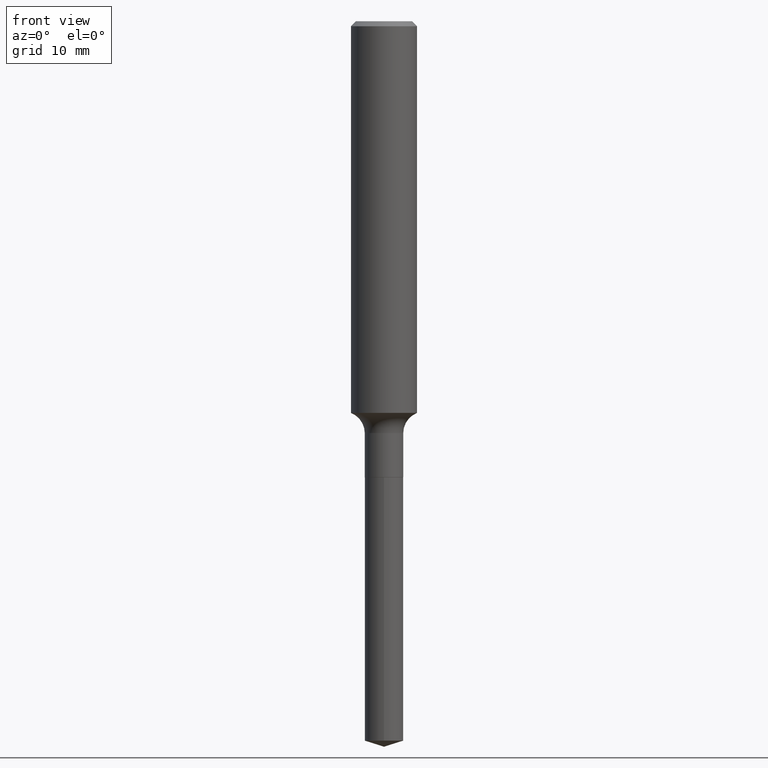
[diagram: clean part render]
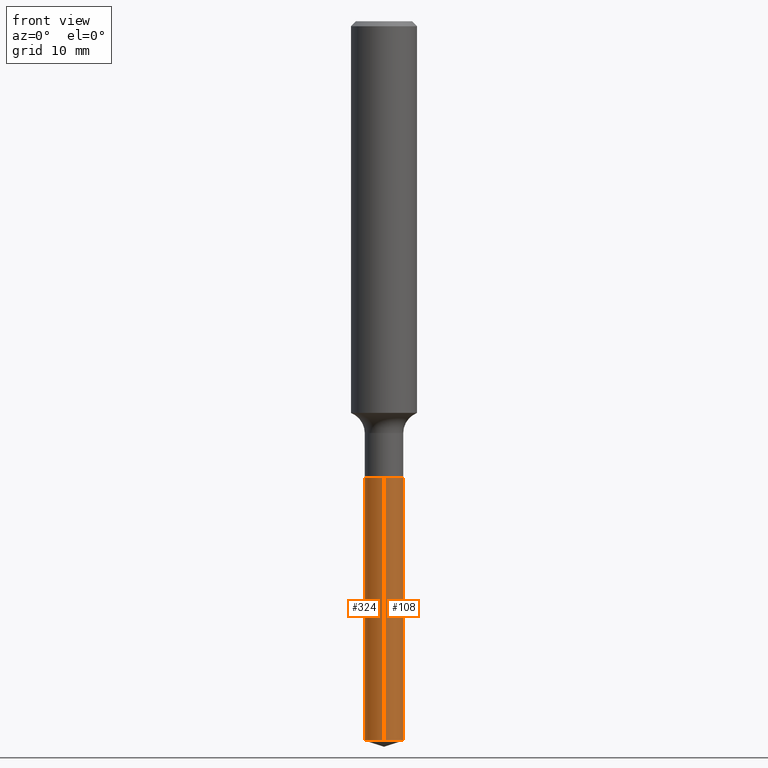
[diagram: same view with one multi-face feature highlighted, each face labeled with its STEP entity id]
A machine part, front view. The highlighted faces form ONE feature: a constant-radius fillet chain: 2 tangent blend faces with common blend radius 1.7501 mm. The faces share edges in the B-rep.
Their STEP definitions:
[1] entity #324 (Cylinder):
#8 = CARTESIAN_POINT ( 'NONE',  ( -4.811261284925203338E-16, -0.06890000000000895408, -2.576675913446237143 ) ) ;
#16 = AXIS2_PLACEMENT_3D ( 'NONE', #29, #449, #252 ) ;
#29 = CARTESIAN_POINT ( 'NONE',  ( 3.995406935545275904E-29, -5.704382211401930676E-15, -1.633799999999999919 ) ) ;
#57 = DIRECTION ( 'NONE',  ( -2.455360489333348875E-29, 3.477315885575264806E-15, 1.000000000000000000 ) ) ;
#60 = VECTOR ( 'NONE', #198, 39.37007874015748143 ) ;
#65 = ORIENTED_EDGE ( 'NONE', *, *, #351, .F. ) ;
#67 = VERTEX_POINT ( 'NONE', #8 ) ;
#91 = CIRCLE ( 'NONE', #492, 0.06889999999999998903 ) ;
#97 = DIRECTION ( 'NONE',  ( -2.455360489333348875E-29, 3.477315885575264806E-15, 1.000000000000000000 ) ) ;
#130 = ORIENTED_EDGE ( 'NONE', *, *, #254, .F. ) ;
#133 = CARTESIAN_POINT ( 'NONE',  ( 6.310507199765257766E-29, -8.983059603354820077E-15, -2.576675913446237143 ) ) ;
#138 = LINE ( 'NONE', #490, #224 ) ;
#164 = DIRECTION ( 'NONE',  ( -6.982962677686265922E-15, -1.000000000000000000, 0.000000000000000000 ) ) ;
#172 = ORIENTED_EDGE ( 'NONE', *, *, #261, .T. ) ;
#198 = DIRECTION ( 'NONE',  ( -2.455360489333348595E-29, 3.477315885575264806E-15, 1.000000000000000000 ) ) ;
#209 = EDGE_CURVE ( 'NONE', #67, #433, #484, .T. ) ;
#224 = VECTOR ( 'NONE', #409, 39.37007874015748143 ) ;
#252 = DIRECTION ( 'NONE',  ( -6.982962677686265922E-15, -1.000000000000000000, 3.964946289788480896E-15 ) ) ;
#254 = EDGE_CURVE ( 'NONE', #298, #433, #296, .T. ) ;
#261 = EDGE_CURVE ( 'NONE', #435, #67, #91, .T. ) ;
#282 = EDGE_LOOP ( 'NONE', ( #65, #172, #475, #130 ) ) ;
#296 = CIRCLE ( 'NONE', #334, 0.06890000000000000291 ) ;
#298 = VERTEX_POINT ( 'NONE', #318 ) ;
#318 = CARTESIAN_POINT ( 'NONE',  ( 4.895639449387722562E-16, 0.06889999999999431302, -1.633800000000000141 ) ) ;
#324 = ADVANCED_FACE ( 'NONE', ( #442 ), #372, .T. ) ;
#334 = AXIS2_PLACEMENT_3D ( 'NONE', #398, #57, #473 ) ;
#351 = EDGE_CURVE ( 'NONE', #435, #298, #138, .T. ) ;
#372 = CYLINDRICAL_SURFACE ( 'NONE', #16, 0.06890000000000000291 ) ;
#398 = CARTESIAN_POINT ( 'NONE',  ( 3.995406935545275904E-29, -5.704382211401930676E-15, -1.633799999999999919 ) ) ;
#400 = CARTESIAN_POINT ( 'NONE',  ( -4.811261284925437038E-16, -0.06890000000000570668, -1.633799999999999697 ) ) ;
#409 = DIRECTION ( 'NONE',  ( -2.455360489333348595E-29, 3.477315885575264806E-15, 1.000000000000000000 ) ) ;
#415 = CARTESIAN_POINT ( 'NONE',  ( 4.895639449387718618E-16, 0.06889999999999096847, -2.576675913446237143 ) ) ;
#433 = VERTEX_POINT ( 'NONE', #454 ) ;
#435 = VERTEX_POINT ( 'NONE', #415 ) ;
#442 = FACE_OUTER_BOUND ( 'NONE', #282, .T. ) ;
#449 = DIRECTION ( 'NONE',  ( -2.455360489333348875E-29, 3.477315885575264806E-15, 1.000000000000000000 ) ) ;
#454 = CARTESIAN_POINT ( 'NONE',  ( -4.811261284925438024E-16, -0.06890000000000570668, -1.633799999999999697 ) ) ;
#473 = DIRECTION ( 'NONE',  ( -6.982962677686265922E-15, -1.000000000000000000, 3.964946289788480896E-15 ) ) ;
#475 = ORIENTED_EDGE ( 'NONE', *, *, #209, .T. ) ;
#484 = LINE ( 'NONE', #400, #60 ) ;
#490 = CARTESIAN_POINT ( 'NONE',  ( 4.895639449387488862E-16, 0.06889999999999429914, -1.633800000000000141 ) ) ;
#492 = AXIS2_PLACEMENT_3D ( 'NONE', #133, #97, #164 ) ;
[2] entity #108 (Cylinder):
#8 = CARTESIAN_POINT ( 'NONE',  ( -4.811261284925203338E-16, -0.06890000000000895408, -2.576675913446237143 ) ) ;
#13 = DIRECTION ( 'NONE',  ( -2.455360489333348875E-29, 3.477315885575264806E-15, 1.000000000000000000 ) ) ;
#23 = CARTESIAN_POINT ( 'NONE',  ( 3.995406935545275904E-29, -5.704382211401930676E-15, -1.633799999999999919 ) ) ;
#31 = DIRECTION ( 'NONE',  ( -6.982962677686265922E-15, -1.000000000000000000, 0.000000000000000000 ) ) ;
#60 = VECTOR ( 'NONE', #198, 39.37007874015748143 ) ;
#67 = VERTEX_POINT ( 'NONE', #8 ) ;
#76 = EDGE_LOOP ( 'NONE', ( #468, #349, #368, #258 ) ) ;
#108 = ADVANCED_FACE ( 'NONE', ( #467 ), #263, .T. ) ;
#138 = LINE ( 'NONE', #490, #224 ) ;
#188 = CIRCLE ( 'NONE', #264, 0.06890000000000000291 ) ;
#198 = DIRECTION ( 'NONE',  ( -2.455360489333348595E-29, 3.477315885575264806E-15, 1.000000000000000000 ) ) ;
#209 = EDGE_CURVE ( 'NONE', #67, #433, #484, .T. ) ;
#215 = EDGE_CURVE ( 'NONE', #433, #298, #188, .T. ) ;
#224 = VECTOR ( 'NONE', #409, 39.37007874015748143 ) ;
#233 = AXIS2_PLACEMENT_3D ( 'NONE', #323, #486, #31 ) ;
#238 = DIRECTION ( 'NONE',  ( -2.455360489333348875E-29, 3.477315885575264806E-15, 1.000000000000000000 ) ) ;
#242 = DIRECTION ( 'NONE',  ( -6.982962677686265922E-15, -1.000000000000000000, 3.964946289788480896E-15 ) ) ;
#258 = ORIENTED_EDGE ( 'NONE', *, *, #209, .F. ) ;
#263 = CYLINDRICAL_SURFACE ( 'NONE', #304, 0.06890000000000000291 ) ;
#264 = AXIS2_PLACEMENT_3D ( 'NONE', #23, #238, #242 ) ;
#298 = VERTEX_POINT ( 'NONE', #318 ) ;
#304 = AXIS2_PLACEMENT_3D ( 'NONE', #311, #13, #313 ) ;
#311 = CARTESIAN_POINT ( 'NONE',  ( 3.995406935545275904E-29, -5.704382211401930676E-15, -1.633799999999999919 ) ) ;
#313 = DIRECTION ( 'NONE',  ( -6.982962677686265922E-15, -1.000000000000000000, 3.964946289788480896E-15 ) ) ;
#318 = CARTESIAN_POINT ( 'NONE',  ( 4.895639449387722562E-16, 0.06889999999999431302, -1.633800000000000141 ) ) ;
#323 = CARTESIAN_POINT ( 'NONE',  ( 6.310507199765257766E-29, -8.983059603354820077E-15, -2.576675913446237143 ) ) ;
#349 = ORIENTED_EDGE ( 'NONE', *, *, #351, .T. ) ;
#351 = EDGE_CURVE ( 'NONE', #435, #298, #138, .T. ) ;
#368 = ORIENTED_EDGE ( 'NONE', *, *, #215, .F. ) ;
#373 = CIRCLE ( 'NONE', #233, 0.06889999999999998903 ) ;
#400 = CARTESIAN_POINT ( 'NONE',  ( -4.811261284925437038E-16, -0.06890000000000570668, -1.633799999999999697 ) ) ;
#409 = DIRECTION ( 'NONE',  ( -2.455360489333348595E-29, 3.477315885575264806E-15, 1.000000000000000000 ) ) ;
#415 = CARTESIAN_POINT ( 'NONE',  ( 4.895639449387718618E-16, 0.06889999999999096847, -2.576675913446237143 ) ) ;
#433 = VERTEX_POINT ( 'NONE', #454 ) ;
#435 = VERTEX_POINT ( 'NONE', #415 ) ;
#454 = CARTESIAN_POINT ( 'NONE',  ( -4.811261284925438024E-16, -0.06890000000000570668, -1.633799999999999697 ) ) ;
#467 = FACE_OUTER_BOUND ( 'NONE', #76, .T. ) ;
#468 = ORIENTED_EDGE ( 'NONE', *, *, #489, .T. ) ;
#484 = LINE ( 'NONE', #400, #60 ) ;
#486 = DIRECTION ( 'NONE',  ( -2.455360489333348875E-29, 3.477315885575264806E-15, 1.000000000000000000 ) ) ;
#489 = EDGE_CURVE ( 'NONE', #67, #435, #373, .T. ) ;
#490 = CARTESIAN_POINT ( 'NONE',  ( 4.895639449387488862E-16, 0.06889999999999429914, -1.633800000000000141 ) ) ;